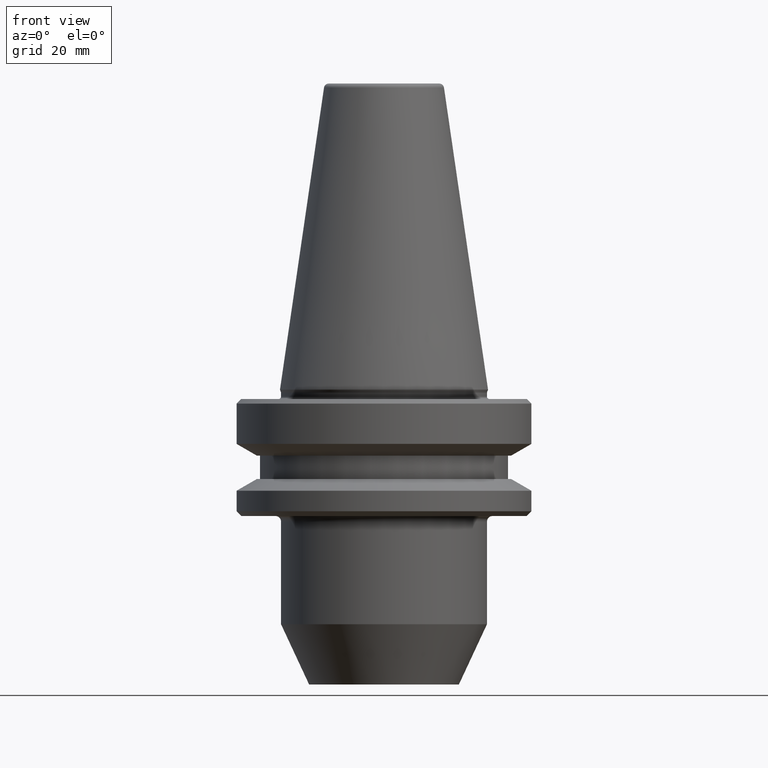
[diagram: clean part render]
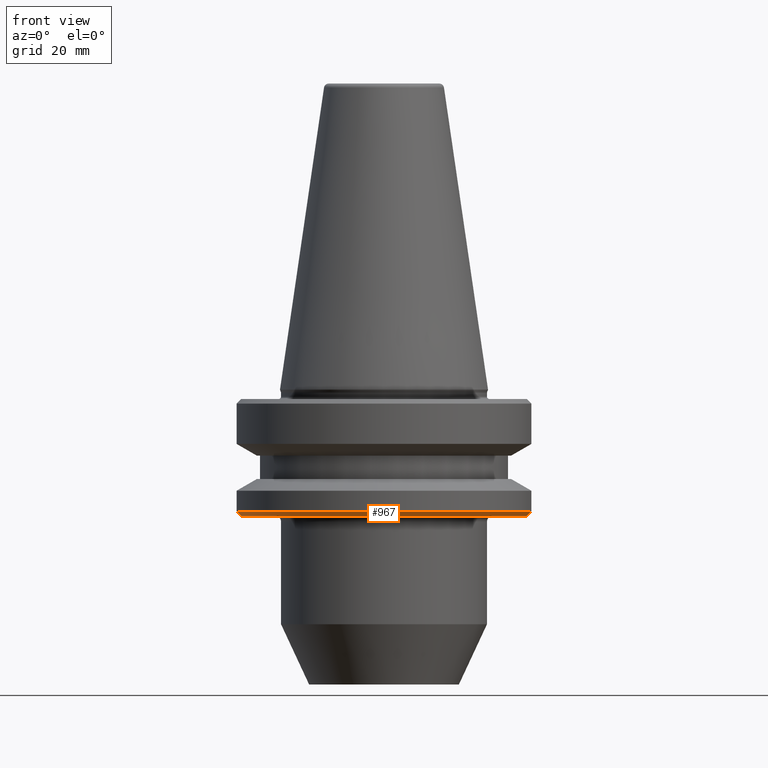
[diagram: same view with one face highlighted and labeled with its STEP entity id]
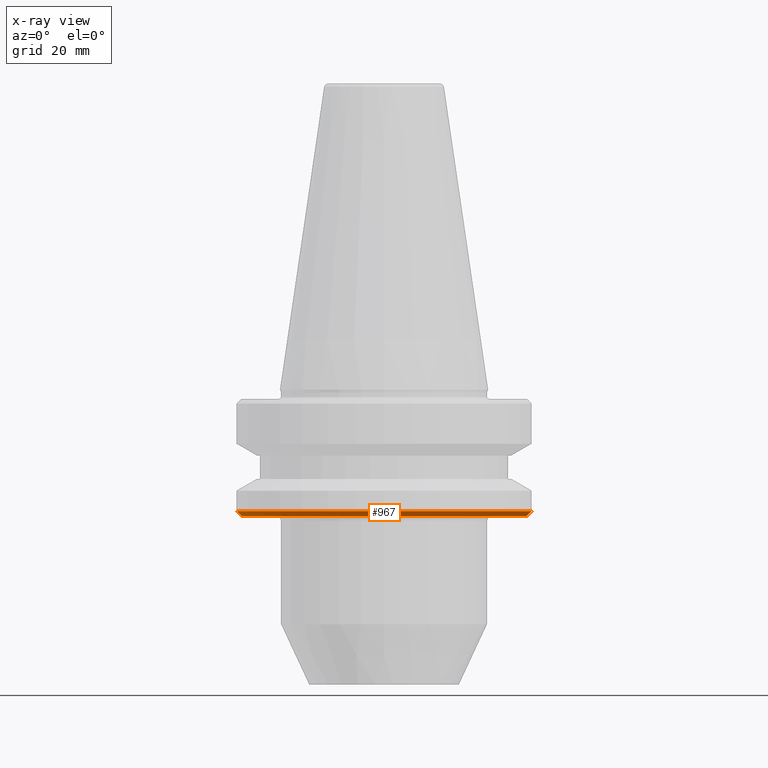
[diagram: x-ray of the same camera — body ghosted, the highlighted face saturated]
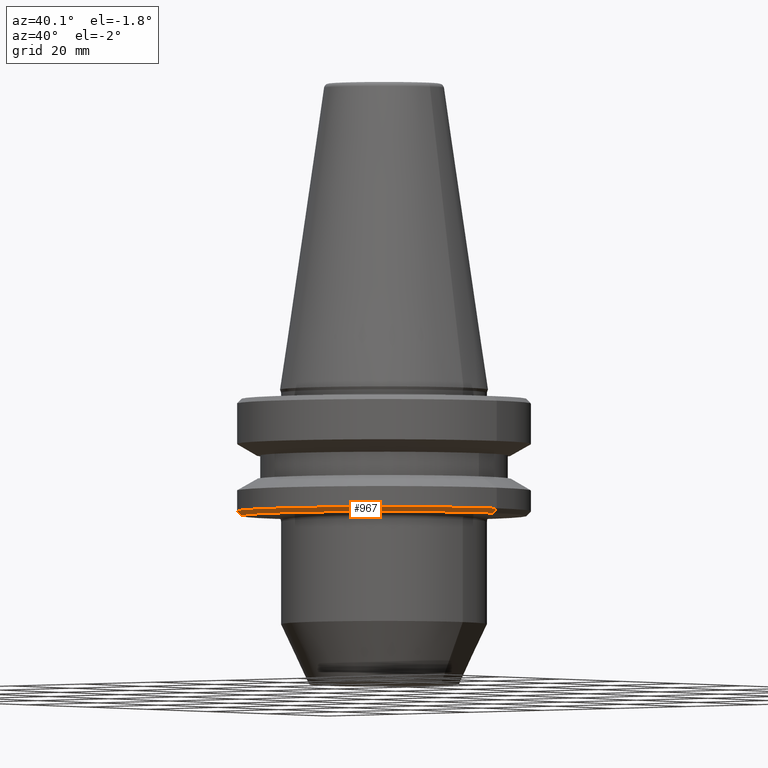
[diagram: same view with one face highlighted and labeled with its STEP entity id]
A machine part, front view. The second image highlights one B-rep face of the part: STEP entity #967.
The next image is the same camera in x-ray: the body ghosted, the highlighted face saturated — about 0% of this face is hidden behind the body in this view.
A second angle (auxiliary view) of the same face is appended — the face is thin or edge-on in the first view.
In plain terms, the highlighted conical surface has half-angle 45 deg.
Its self-contained STEP definition (entity closure, byte-faithful):
#6 = DIRECTION ( 'NONE',  ( 1.000000000000000000, 0.0000000000000000000, 0.0000000000000000000 ) ) ;
#8 = AXIS2_PLACEMENT_3D ( 'NONE', #815, #751, #198 ) ;
#57 = CARTESIAN_POINT ( 'NONE',  ( 0.0000000000000000000, 0.0000000000000000000, -26.31128678844368800 ) ) ;
#119 = AXIS2_PLACEMENT_3D ( 'NONE', #713, #165, #6 ) ;
#130 = VERTEX_POINT ( 'NONE', #436 ) ;
#140 = ORIENTED_EDGE ( 'NONE', *, *, #1046, .T. ) ;
#148 = DIRECTION ( 'NONE',  ( 1.000000000000000000, 0.0000000000000000000, 0.0000000000000000000 ) ) ;
#165 = DIRECTION ( 'NONE',  ( -0.0000000000000000000, -0.0000000000000000000, 1.000000000000000000 ) ) ;
#166 = AXIS2_PLACEMENT_3D ( 'NONE', #57, #648, #148 ) ;
#198 = DIRECTION ( 'NONE',  ( 1.000000000000000000, 0.0000000000000000000, 0.0000000000000000000 ) ) ;
#297 = CIRCLE ( 'NONE', #166, 30.49999999999997200 ) ;
#311 = VECTOR ( 'NONE', #598, 1000.000000000000000 ) ;
#346 = LINE ( 'NONE', #799, #311 ) ;
#376 = VECTOR ( 'NONE', #700, 1000.000000000000000 ) ;
#410 = ORIENTED_EDGE ( 'NONE', *, *, #618, .F. ) ;
#436 = CARTESIAN_POINT ( 'NONE',  ( 30.49999999999997200, 0.0000000000000000000, -26.31128678844368800 ) ) ;
#569 = CARTESIAN_POINT ( 'NONE',  ( -30.49999999999997200, 3.796405077356805400E-015, -26.31128678844368800 ) ) ;
#589 = CONICAL_SURFACE ( 'NONE', #119, 30.49999999999997200, 0.7853981633974482800 ) ;
#598 = DIRECTION ( 'NONE',  ( 0.7071067811865474600, 0.0000000000000000000, 0.7071067811865475700 ) ) ;
#600 = LINE ( 'NONE', #942, #376 ) ;
#613 = FACE_OUTER_BOUND ( 'NONE', #848, .T. ) ;
#618 = EDGE_CURVE ( 'NONE', #681, #940, #600, .T. ) ;
#637 = ORIENTED_EDGE ( 'NONE', *, *, #659, .T. ) ;
#648 = DIRECTION ( 'NONE',  ( -0.0000000000000000000, -0.0000000000000000000, 1.000000000000000000 ) ) ;
#659 = EDGE_CURVE ( 'NONE', #130, #764, #346, .T. ) ;
#681 = VERTEX_POINT ( 'NONE', #569 ) ;
#689 = CARTESIAN_POINT ( 'NONE',  ( 31.50000000000019500, 0.0000000000000000000, -25.31128678844346400 ) ) ;
#700 = DIRECTION ( 'NONE',  ( -0.7071067811865474600, 8.659560562354931600E-017, 0.7071067811865475700 ) ) ;
#713 = CARTESIAN_POINT ( 'NONE',  ( 0.0000000000000000000, 0.0000000000000000000, -26.31128678844368800 ) ) ;
#751 = DIRECTION ( 'NONE',  ( -0.0000000000000000000, -0.0000000000000000000, 1.000000000000000000 ) ) ;
#764 = VERTEX_POINT ( 'NONE', #689 ) ;
#799 = CARTESIAN_POINT ( 'NONE',  ( 30.49999999999997200, 0.0000000000000000000, -26.31128678844368800 ) ) ;
#815 = CARTESIAN_POINT ( 'NONE',  ( 0.0000000000000000000, 0.0000000000000000000, -25.31128678844346400 ) ) ;
#843 = EDGE_CURVE ( 'NONE', #940, #764, #992, .T. ) ;
#848 = EDGE_LOOP ( 'NONE', ( #410, #140, #637, #952 ) ) ;
#865 = CARTESIAN_POINT ( 'NONE',  ( -31.50000000000019500, 3.857637417314186400E-015, -25.31128678844346400 ) ) ;
#940 = VERTEX_POINT ( 'NONE', #865 ) ;
#942 = CARTESIAN_POINT ( 'NONE',  ( -30.49999999999997200, 3.735172737399423600E-015, -26.31128678844368800 ) ) ;
#952 = ORIENTED_EDGE ( 'NONE', *, *, #843, .F. ) ;
#967 = ADVANCED_FACE ( 'NONE', ( #613 ), #589, .T. ) ;
#992 = CIRCLE ( 'NONE', #8, 31.50000000000019500 ) ;
#1046 = EDGE_CURVE ( 'NONE', #681, #130, #297, .T. ) ;